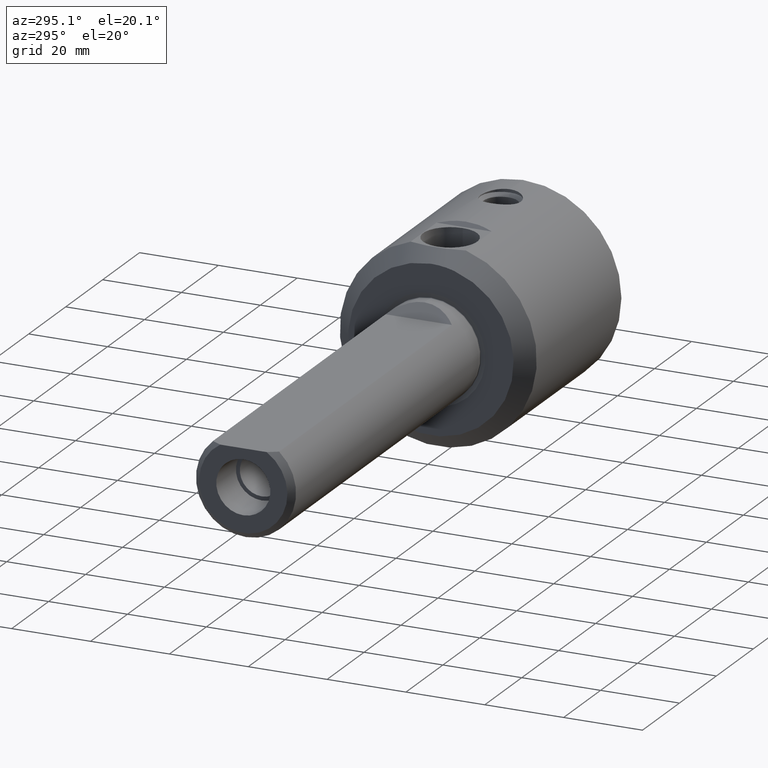
[diagram: clean part render]
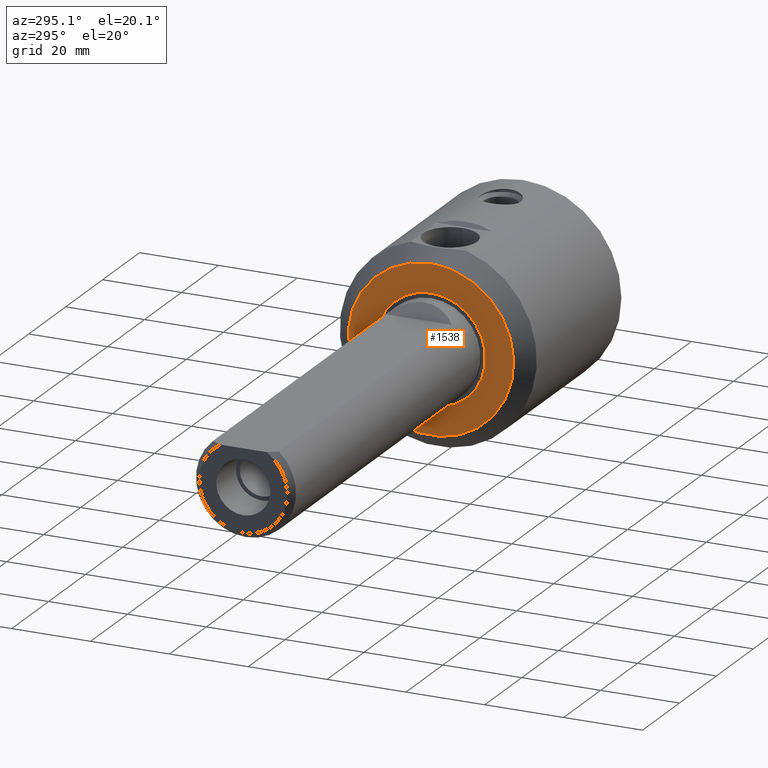
[diagram: same view with one face highlighted and labeled with its STEP entity id]
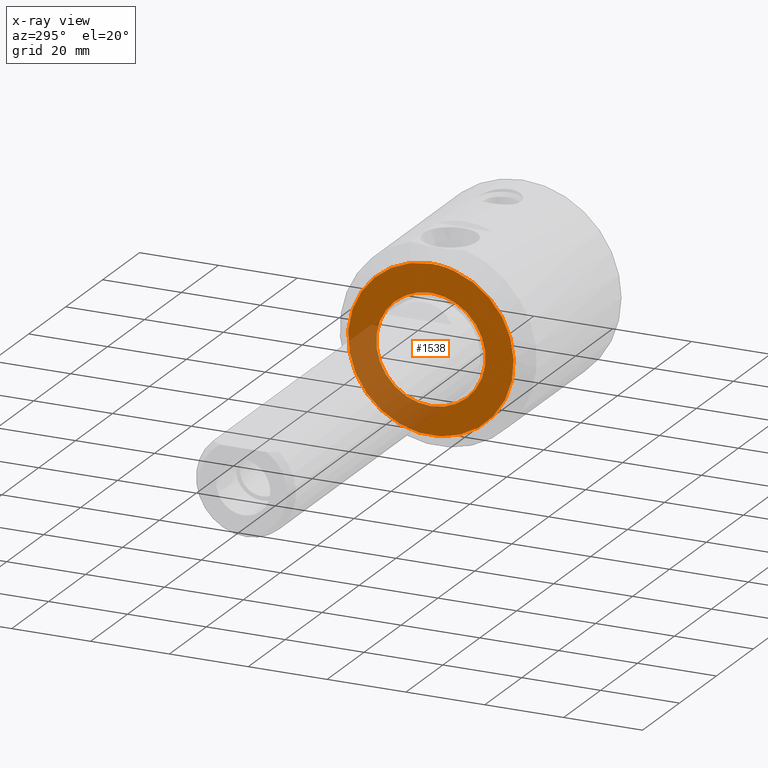
[diagram: x-ray of the same camera — body ghosted, the highlighted face saturated]
A machine part, auxiliary view. The second image highlights one B-rep face of the part: STEP entity #1538.
The next image is the same camera in x-ray: the body ghosted, the highlighted face saturated — about 26% of this face is hidden behind the body in this view.
In plain terms, the highlighted planar face has unit normal (1, 0, 0).
Its self-contained STEP definition (entity closure, byte-faithful):
#68 = VERTEX_POINT ( 'NONE', #991 ) ;
#106 = PLANE ( 'NONE',  #1354 ) ;
#323 = CARTESIAN_POINT ( 'NONE',  ( 101.6000000000000085, 0.0000000000000000000, 0.0000000000000000000 ) ) ;
#331 = CARTESIAN_POINT ( 'NONE',  ( 101.6000000000000085, 0.0000000000000000000, 0.0000000000000000000 ) ) ;
#479 = AXIS2_PLACEMENT_3D ( 'NONE', #323, #1184, #1077 ) ;
#550 = FACE_OUTER_BOUND ( 'NONE', #1271, .T. ) ;
#555 = ORIENTED_EDGE ( 'NONE', *, *, #1368, .T. ) ;
#726 = CIRCLE ( 'NONE', #1157, 13.84675409662867729 ) ;
#840 = DIRECTION ( 'NONE',  ( -1.000000000000000000, -0.0000000000000000000, -0.0000000000000000000 ) ) ;
#854 = CARTESIAN_POINT ( 'NONE',  ( 101.6000000000000085, 13.84675409662867729, 0.0000000000000000000 ) ) ;
#875 = DIRECTION ( 'NONE',  ( 0.0000000000000000000, 0.0000000000000000000, -1.000000000000000000 ) ) ;
#928 = EDGE_LOOP ( 'NONE', ( #1196 ) ) ;
#982 = CARTESIAN_POINT ( 'NONE',  ( 101.6000000000000085, 0.0000000000000000000, 13.84675409662867729 ) ) ;
#991 = CARTESIAN_POINT ( 'NONE',  ( 101.6000000000000085, 0.0000000000000000000, 21.00000000000000000 ) ) ;
#1015 = EDGE_CURVE ( 'NONE', #1423, #1423, #726, .T. ) ;
#1077 = DIRECTION ( 'NONE',  ( 0.0000000000000000000, 0.0000000000000000000, 1.000000000000000000 ) ) ;
#1157 = AXIS2_PLACEMENT_3D ( 'NONE', #331, #840, #1224 ) ;
#1184 = DIRECTION ( 'NONE',  ( -1.000000000000000000, -0.0000000000000000000, -0.0000000000000000000 ) ) ;
#1196 = ORIENTED_EDGE ( 'NONE', *, *, #1015, .F. ) ;
#1224 = DIRECTION ( 'NONE',  ( 0.0000000000000000000, 0.0000000000000000000, 1.000000000000000000 ) ) ;
#1271 = EDGE_LOOP ( 'NONE', ( #555 ) ) ;
#1354 = AXIS2_PLACEMENT_3D ( 'NONE', #854, #1516, #875 ) ;
#1368 = EDGE_CURVE ( 'NONE', #68, #68, #1652, .T. ) ;
#1423 = VERTEX_POINT ( 'NONE', #982 ) ;
#1505 = FACE_BOUND ( 'NONE', #928, .T. ) ;
#1516 = DIRECTION ( 'NONE',  ( 1.000000000000000000, 0.0000000000000000000, 0.0000000000000000000 ) ) ;
#1538 = ADVANCED_FACE ( 'NONE', ( #1505, #550 ), #106, .F. ) ;
#1652 = CIRCLE ( 'NONE', #479, 21.00000000000000000 ) ;